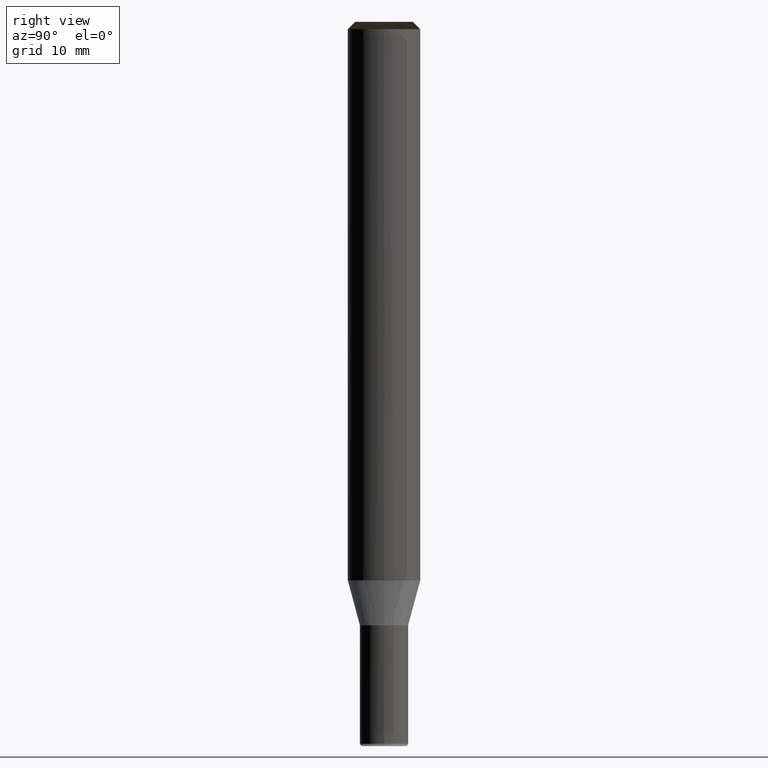
[diagram: clean part render]
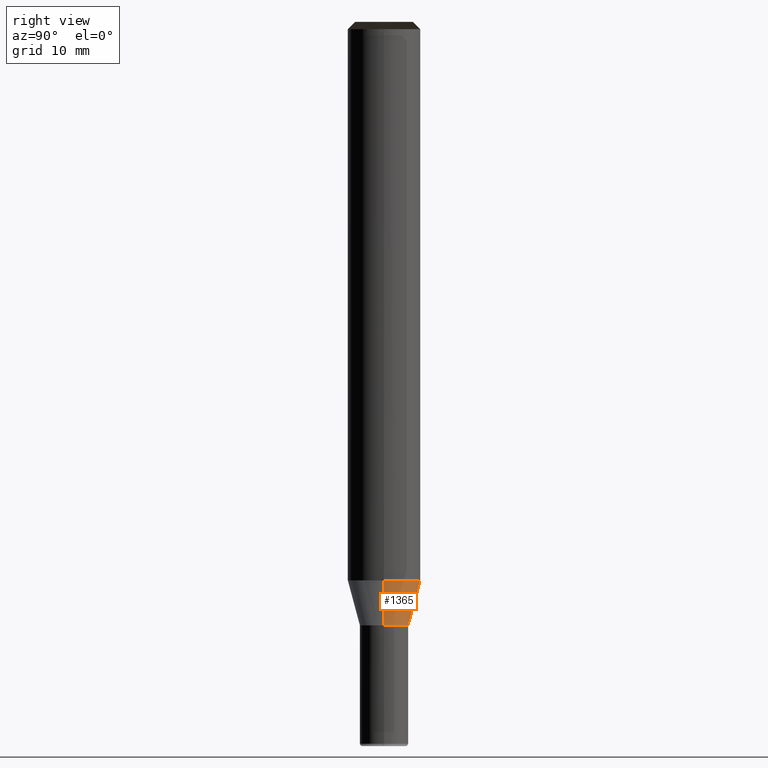
[diagram: same view with one face highlighted and labeled with its STEP entity id]
A machine part, right view. The second image highlights one B-rep face of the part: STEP entity #1365.
In plain terms, the highlighted face is a freeform B-spline surface patch.
Its self-contained STEP definition (entity closure, byte-faithful):
#1124=CARTESIAN_POINT('',(2.0,0.0,-3.732050807569));
#1125=CARTESIAN_POINT('',(2.0,2.0,-3.732050807569));
#1126=CARTESIAN_POINT('',(0.0,2.0,-3.732050807569));
#1127=CARTESIAN_POINT('',(-2.0,2.0,-3.732050807569));
#1128=CARTESIAN_POINT('',(-2.0,0.0,-3.732050807569));
#1148=CARTESIAN_POINT('',(3.0,0.0,0.0));
#1149=CARTESIAN_POINT('',(3.0,3.0,0.0));
#1150=CARTESIAN_POINT('',(0.0,3.0,0.0));
#1151=CARTESIAN_POINT('',(-3.0,3.0,0.0));
#1152=CARTESIAN_POINT('',(-3.0,0.0,0.0));
#1346=(
BOUNDED_SURFACE()
B_SPLINE_SURFACE(1,2,(
(#1124,#1125,#1126,#1127,#1128),
(#1148,#1149,#1150,#1151,#1152)
), .UNSPECIFIED.,.F.,.F.,.F.)
B_SPLINE_SURFACE_WITH_KNOTS((2,2),(3,2,3),(
0.0,1.0),(
0.0,0.5,1.0), .UNSPECIFIED.)
GEOMETRIC_REPRESENTATION_ITEM()
RATIONAL_B_SPLINE_SURFACE(((1.0,0.707106781187,1.0,0.707106781187,1.0),
(1.0,0.707106781187,1.0,0.707106781187,1.0)
))
REPRESENTATION_ITEM('')
SURFACE()
);
#1347=(
BOUNDED_CURVE()
B_SPLINE_CURVE(2,(#1148,#1149,#1150,#1151,#1152),.UNSPECIFIED.,.F.,.F.)
B_SPLINE_CURVE_WITH_KNOTS((3,2,3),
(0.0,0.5,1.0),.UNSPECIFIED.)
CURVE()
GEOMETRIC_REPRESENTATION_ITEM()
RATIONAL_B_SPLINE_CURVE((1.0,0.707106781187,1.0,0.707106781187,1.0))
REPRESENTATION_ITEM('')
);
#1348=(
BOUNDED_CURVE()
B_SPLINE_CURVE(1,(#1152,#1128),.UNSPECIFIED.,.F.,.F.)
B_SPLINE_CURVE_WITH_KNOTS((2,2),
(0.0,1.0),.UNSPECIFIED.)
CURVE()
GEOMETRIC_REPRESENTATION_ITEM()
RATIONAL_B_SPLINE_CURVE((1.0,1.0))
REPRESENTATION_ITEM('')
);
#1349=(
BOUNDED_CURVE()
B_SPLINE_CURVE(2,(#1128,#1127,#1126,#1125,#1124),.UNSPECIFIED.,.F.,.F.)
B_SPLINE_CURVE_WITH_KNOTS((3,2,3),
(0.0,0.5,1.0),.UNSPECIFIED.)
CURVE()
GEOMETRIC_REPRESENTATION_ITEM()
RATIONAL_B_SPLINE_CURVE((1.0,0.707106781187,1.0,0.707106781187,1.0))
REPRESENTATION_ITEM('')
);
#1350=(
BOUNDED_CURVE()
B_SPLINE_CURVE(1,(#1124,#1148),.UNSPECIFIED.,.F.,.F.)
B_SPLINE_CURVE_WITH_KNOTS((2,2),
(0.0,1.0),.UNSPECIFIED.)
CURVE()
GEOMETRIC_REPRESENTATION_ITEM()
RATIONAL_B_SPLINE_CURVE((1.0,1.0))
REPRESENTATION_ITEM('')
);
#1351=VERTEX_POINT('',#1124);
#1352=VERTEX_POINT('',#1128);
#1353=VERTEX_POINT('',#1148);
#1354=VERTEX_POINT('',#1152);
#1355=EDGE_CURVE('',#1353,#1354,#1347,.T.);
#1356=EDGE_CURVE('',#1354,#1352,#1348,.T.);
#1357=EDGE_CURVE('',#1352,#1351,#1349,.T.);
#1358=EDGE_CURVE('',#1351,#1353,#1350,.T.);
#1359=ORIENTED_EDGE('',*,*,#1355,.T.);
#1360=ORIENTED_EDGE('',*,*,#1356,.T.);
#1361=ORIENTED_EDGE('',*,*,#1357,.T.);
#1362=ORIENTED_EDGE('',*,*,#1358,.T.);
#1363=EDGE_LOOP('',(#1359,#1360,#1361,#1362));
#1364=FACE_OUTER_BOUND('',#1363,.T.);
#1365=ADVANCED_FACE('',(#1364),#1346,.T.);